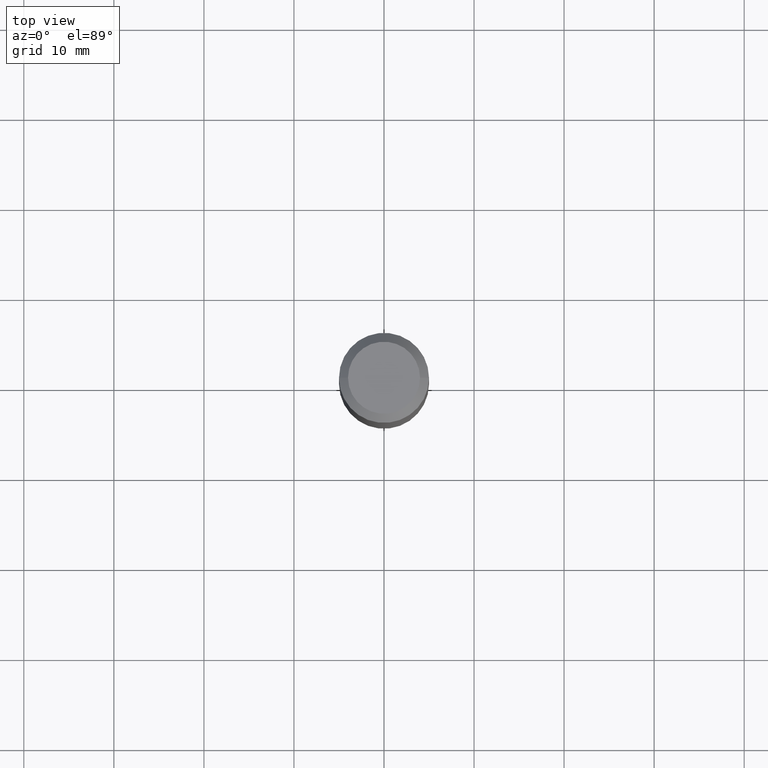
[diagram: clean part render]
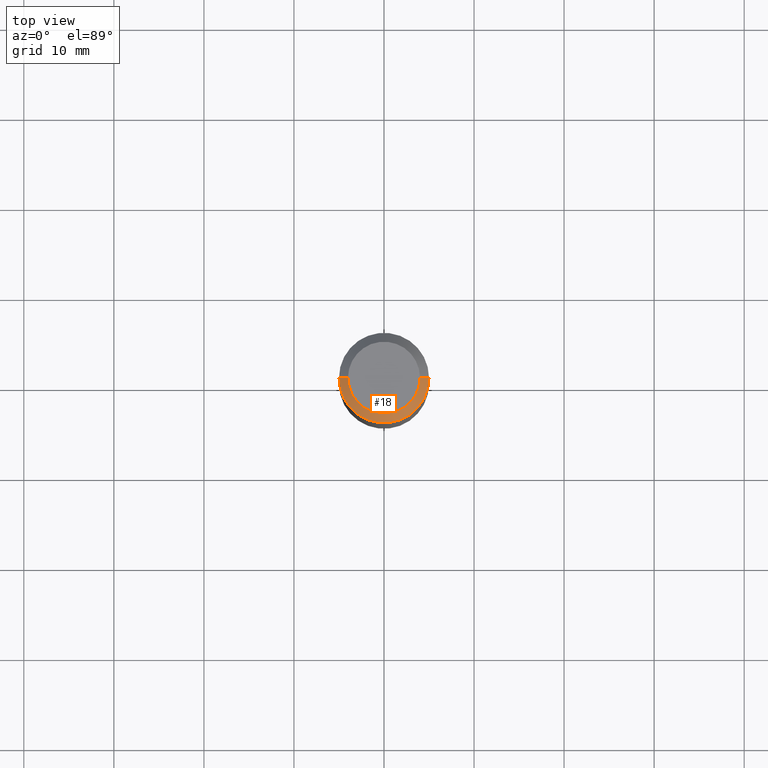
[diagram: same view with one face highlighted and labeled with its STEP entity id]
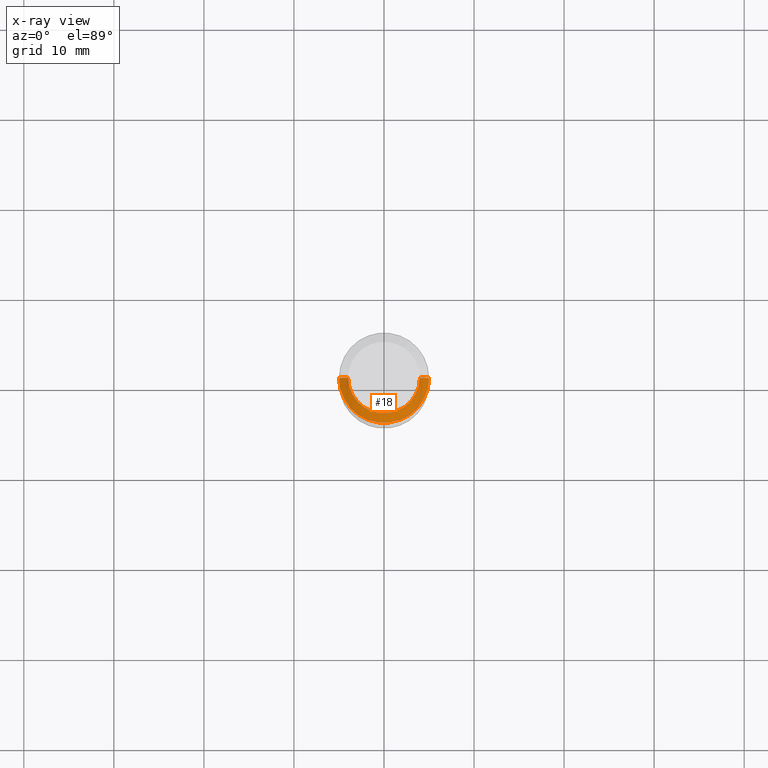
[diagram: x-ray of the same camera — body ghosted, the highlighted face saturated]
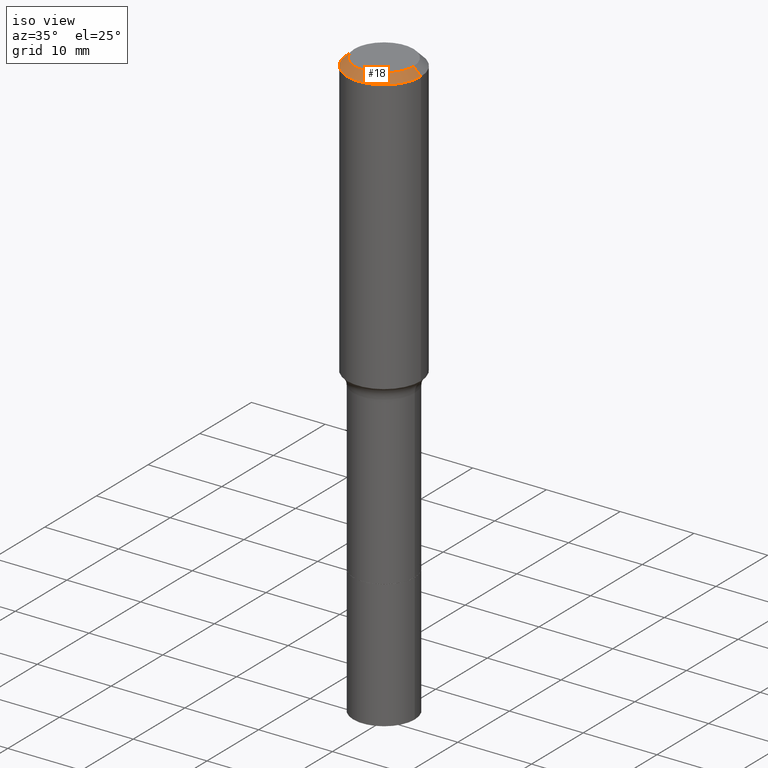
[diagram: same view with one face highlighted and labeled with its STEP entity id]
A machine part, top view. The second image highlights one B-rep face of the part: STEP entity #18.
The next image is the same camera in x-ray: the body ghosted, the highlighted face saturated — about 0% of this face is hidden behind the body in this view.
A second angle (iso view) of the same face is appended — the face is thin or edge-on in the first view.
In plain terms, the highlighted conical surface has half-angle 45 deg.
Its self-contained STEP definition (entity closure, byte-faithful):
#9 = LINE ( 'NONE', #282, #296 ) ;
#18 = ADVANCED_FACE ( 'NONE', ( #473 ), #215, .T. ) ;
#23 = DIRECTION ( 'NONE',  ( -0.7071067811865453523, 2.468850131082234184E-15, -0.7071067811865496822 ) ) ;
#25 = VECTOR ( 'NONE', #23, 39.37007874015748143 ) ;
#27 = CARTESIAN_POINT ( 'NONE',  ( -0.1968500000000000250, -1.302452302324870387E-15, -0.03937000000000025896 ) ) ;
#46 = VERTEX_POINT ( 'NONE', #514 ) ;
#52 = DIRECTION ( 'NONE',  ( 1.000000000000000000, -6.982962677686265922E-15, 0.000000000000000000 ) ) ;
#78 = ORIENTED_EDGE ( 'NONE', *, *, #461, .F. ) ;
#82 = VERTEX_POINT ( 'NONE', #196 ) ;
#92 = AXIS2_PLACEMENT_3D ( 'NONE', #455, #378, #52 ) ;
#107 = EDGE_CURVE ( 'NONE', #443, #46, #9, .T. ) ;
#118 = DIRECTION ( 'NONE',  ( 1.000000000000000000, -6.982962677686265922E-15, 4.876223630392693006E-29 ) ) ;
#144 = ORIENTED_EDGE ( 'NONE', *, *, #206, .T. ) ;
#149 = LINE ( 'NONE', #179, #25 ) ;
#157 = CARTESIAN_POINT ( 'NONE',  ( 9.627810689950945397E-31, -1.374596203102555315E-16, -0.03937000000000025896 ) ) ;
#179 = CARTESIAN_POINT ( 'NONE',  ( -0.1968500000000000250, 1.237136582792286225E-15, -0.03937000000000025896 ) ) ;
#196 = CARTESIAN_POINT ( 'NONE',  ( -0.1574800000000000089, 1.168406772637159618E-15, 3.855188123707939751E-18 ) ) ;
#206 = EDGE_CURVE ( 'NONE', #82, #311, #149, .T. ) ;
#215 = CONICAL_SURFACE ( 'NONE', #264, 0.1968500000000000250, 0.7853981633974452814 ) ;
#238 = CARTESIAN_POINT ( 'NONE',  ( -9.427742298522567634E-47, 1.346031739168368355E-32, 3.855188123715870730E-18 ) ) ;
#264 = AXIS2_PLACEMENT_3D ( 'NONE', #157, #320, #277 ) ;
#277 = DIRECTION ( 'NONE',  ( -1.000000000000000000, 6.982962677686265922E-15, 0.000000000000000000 ) ) ;
#279 = ORIENTED_EDGE ( 'NONE', *, *, #107, .F. ) ;
#282 = CARTESIAN_POINT ( 'NONE',  ( 0.1968500000000000250, -1.487948651171581601E-15, -0.03937000000000025896 ) ) ;
#283 = CIRCLE ( 'NONE', #92, 0.1968500000000000250 ) ;
#292 = AXIS2_PLACEMENT_3D ( 'NONE', #238, #513, #118 ) ;
#296 = VECTOR ( 'NONE', #456, 39.37007874015748143 ) ;
#301 = EDGE_LOOP ( 'NONE', ( #279, #78, #144, #502 ) ) ;
#311 = VERTEX_POINT ( 'NONE', #27 ) ;
#320 = DIRECTION ( 'NONE',  ( 2.445468806185136597E-29, -3.491481338843145583E-15, -1.000000000000000000 ) ) ;
#326 = EDGE_CURVE ( 'NONE', #311, #46, #283, .T. ) ;
#346 = CARTESIAN_POINT ( 'NONE',  ( 0.1574800000000000089, -1.284169937930321189E-15, 3.855188123724205385E-18 ) ) ;
#363 = CIRCLE ( 'NONE', #292, 0.1574800000000000089 ) ;
#378 = DIRECTION ( 'NONE',  ( -2.445468806185136597E-29, 3.491481338843145583E-15, 1.000000000000000000 ) ) ;
#443 = VERTEX_POINT ( 'NONE', #346 ) ;
#455 = CARTESIAN_POINT ( 'NONE',  ( 9.627810689950945397E-31, -1.374596203102555315E-16, -0.03937000000000025896 ) ) ;
#456 = DIRECTION ( 'NONE',  ( 0.7071067811865453523, -7.319954787623248157E-15, -0.7071067811865496822 ) ) ;
#461 = EDGE_CURVE ( 'NONE', #82, #443, #363, .T. ) ;
#473 = FACE_OUTER_BOUND ( 'NONE', #301, .T. ) ;
#502 = ORIENTED_EDGE ( 'NONE', *, *, #326, .T. ) ;
#513 = DIRECTION ( 'NONE',  ( -2.445468806185136597E-29, 3.491481338843145583E-15, 1.000000000000000000 ) ) ;
#514 = CARTESIAN_POINT ( 'NONE',  ( 0.1968500000000000250, -1.512055823412797189E-15, -0.03937000000000025896 ) ) ;